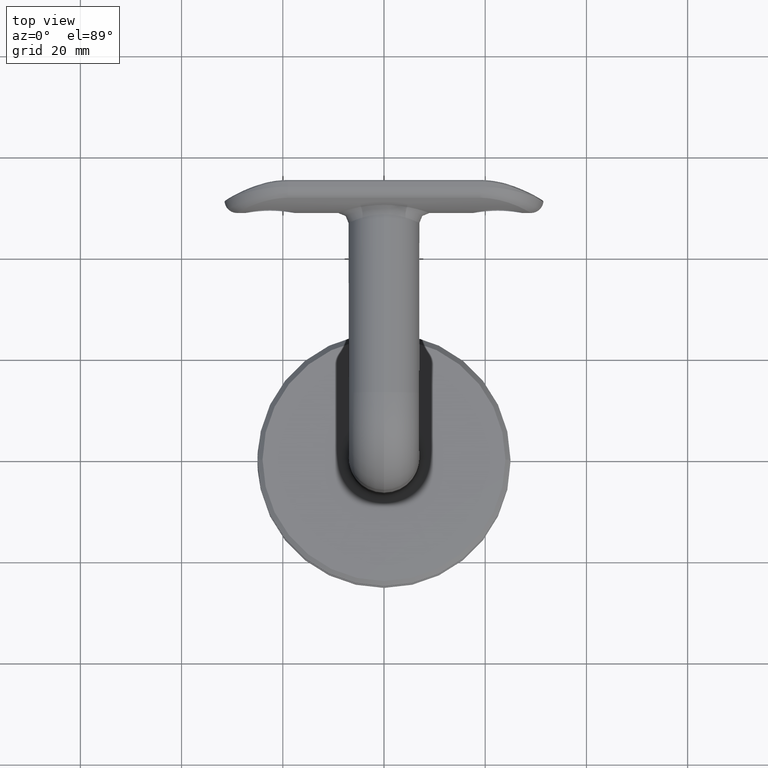
[diagram: clean part render]
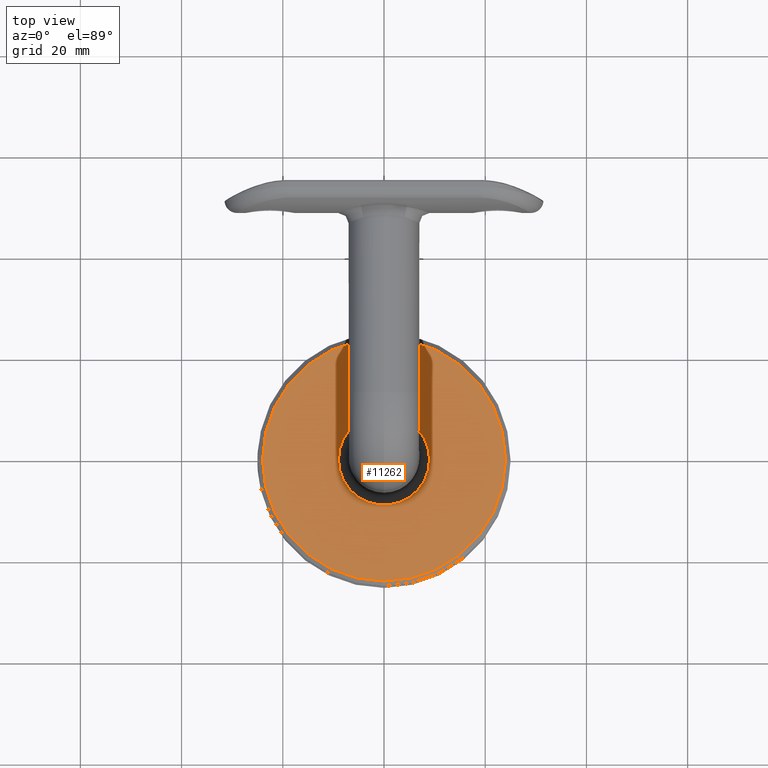
[diagram: same view with one face highlighted and labeled with its STEP entity id]
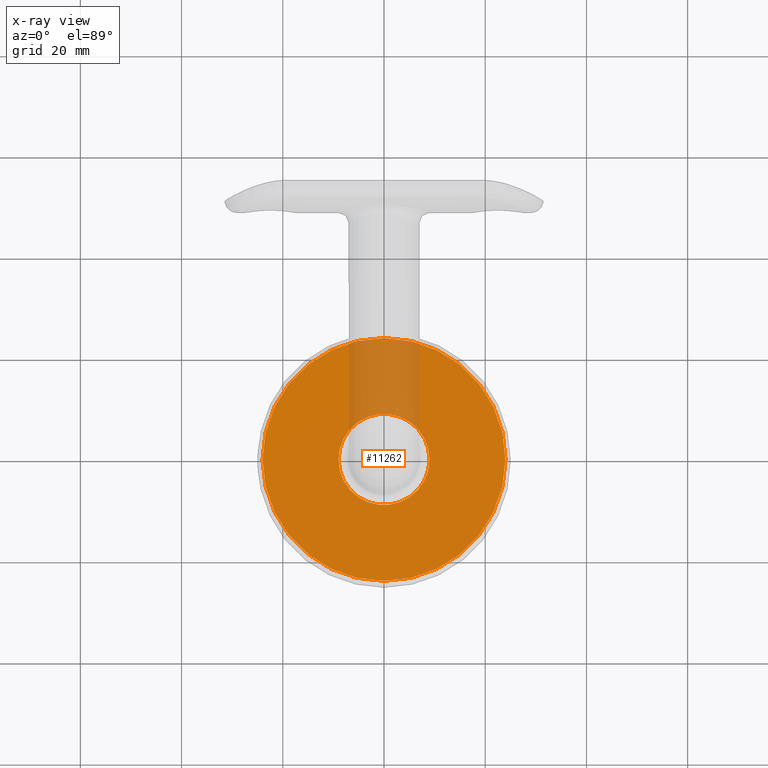
[diagram: x-ray of the same camera — body ghosted, the highlighted face saturated]
A machine part, top view. The second image highlights one B-rep face of the part: STEP entity #11262.
The next image is the same camera in x-ray: the body ghosted, the highlighted face saturated — about 14% of this face is hidden behind the body in this view.
In plain terms, the highlighted planar face has unit normal (0, 0, -1).
Its self-contained STEP definition (entity closure, byte-faithful):
#34 = ORIENTED_EDGE ( 'NONE', *, *, #3902, .T. ) ;
#177 = AXIS2_PLACEMENT_3D ( 'NONE', #21258, #2032, #10890 ) ;
#190 = FACE_BOUND ( 'NONE', #1752, .T. ) ;
#304 = CARTESIAN_POINT ( 'NONE',  ( -9.000000000000001776, -8.572527594031469245E-16, 5.000000000000000000 ) ) ;
#319 = ORIENTED_EDGE ( 'NONE', *, *, #3407, .T. ) ;
#663 = AXIS2_PLACEMENT_3D ( 'NONE', #21663, #10841, #16431 ) ;
#1002 = VERTEX_POINT ( 'NONE', #1566 ) ;
#1566 = CARTESIAN_POINT ( 'NONE',  ( 24.00000000000000711, 3.000384657911015469E-15, 5.000000000000000000 ) ) ;
#1752 = EDGE_LOOP ( 'NONE', ( #34, #6436 ) ) ;
#2032 = DIRECTION ( 'NONE',  ( 0.000000000000000000, 0.000000000000000000, -1.000000000000000000 ) ) ;
#2519 = VERTEX_POINT ( 'NONE', #3059 ) ;
#3059 = CARTESIAN_POINT ( 'NONE',  ( -24.00000000000000711, 0.000000000000000000, 5.000000000000000000 ) ) ;
#3124 = VERTEX_POINT ( 'NONE', #4311 ) ;
#3407 = EDGE_CURVE ( 'NONE', #2519, #1002, #18894, .T. ) ;
#3882 = CIRCLE ( 'NONE', #177, 9.000000000000001776 ) ;
#3902 = EDGE_CURVE ( 'NONE', #14327, #3124, #3882, .T. ) ;
#4311 = CARTESIAN_POINT ( 'NONE',  ( 9.000000000000001776, 2.449293598294709866E-16, 5.000000000000000000 ) ) ;
#5991 = DIRECTION ( 'NONE',  ( 0.000000000000000000, 0.000000000000000000, -1.000000000000000000 ) ) ;
#6436 = ORIENTED_EDGE ( 'NONE', *, *, #9942, .T. ) ;
#7040 = CARTESIAN_POINT ( 'NONE',  ( 0.000000000000000000, -8.572527594031469245E-16, 5.000000000000000000 ) ) ;
#7264 = ORIENTED_EDGE ( 'NONE', *, *, #12477, .T. ) ;
#9352 = DIRECTION ( 'NONE',  ( -1.000000000000000000, 0.000000000000000000, 0.000000000000000000 ) ) ;
#9942 = EDGE_CURVE ( 'NONE', #3124, #14327, #22377, .T. ) ;
#10125 = CARTESIAN_POINT ( 'NONE',  ( 0.000000000000000000, 0.000000000000000000, 5.000000000000000000 ) ) ;
#10608 = FACE_OUTER_BOUND ( 'NONE', #16127, .T. ) ;
#10613 = CIRCLE ( 'NONE', #663, 24.00000000000000711 ) ;
#10841 = DIRECTION ( 'NONE',  ( -0.000000000000000000, -0.000000000000000000, 1.000000000000000000 ) ) ;
#10890 = DIRECTION ( 'NONE',  ( -1.000000000000000000, 0.000000000000000000, 0.000000000000000000 ) ) ;
#11262 = ADVANCED_FACE ( 'NONE', ( #190, #10608 ), #14428, .F. ) ;
#12477 = EDGE_CURVE ( 'NONE', #1002, #2519, #10613, .T. ) ;
#14327 = VERTEX_POINT ( 'NONE', #304 ) ;
#14428 = PLANE ( 'NONE',  #18335 ) ;
#15116 = DIRECTION ( 'NONE',  ( -1.000000000000000000, 0.000000000000000000, 0.000000000000000000 ) ) ;
#16127 = EDGE_LOOP ( 'NONE', ( #319, #7264 ) ) ;
#16431 = DIRECTION ( 'NONE',  ( -1.000000000000000000, 0.000000000000000000, 0.000000000000000000 ) ) ;
#18335 = AXIS2_PLACEMENT_3D ( 'NONE', #19784, #5991, #21485 ) ;
#18894 = CIRCLE ( 'NONE', #19340, 24.00000000000000711 ) ;
#19224 = DIRECTION ( 'NONE',  ( 0.000000000000000000, 0.000000000000000000, -1.000000000000000000 ) ) ;
#19340 = AXIS2_PLACEMENT_3D ( 'NONE', #10125, #20244, #15116 ) ;
#19784 = CARTESIAN_POINT ( 'NONE',  ( 0.000000000000000000, 0.000000000000000000, 5.000000000000000000 ) ) ;
#20244 = DIRECTION ( 'NONE',  ( -0.000000000000000000, -0.000000000000000000, 1.000000000000000000 ) ) ;
#20557 = AXIS2_PLACEMENT_3D ( 'NONE', #7040, #19224, #9352 ) ;
#21258 = CARTESIAN_POINT ( 'NONE',  ( 0.000000000000000000, -8.572527594031469245E-16, 5.000000000000000000 ) ) ;
#21485 = DIRECTION ( 'NONE',  ( -1.000000000000000000, 0.000000000000000000, -0.000000000000000000 ) ) ;
#21663 = CARTESIAN_POINT ( 'NONE',  ( 0.000000000000000000, 0.000000000000000000, 5.000000000000000000 ) ) ;
#22377 = CIRCLE ( 'NONE', #20557, 9.000000000000001776 ) ;